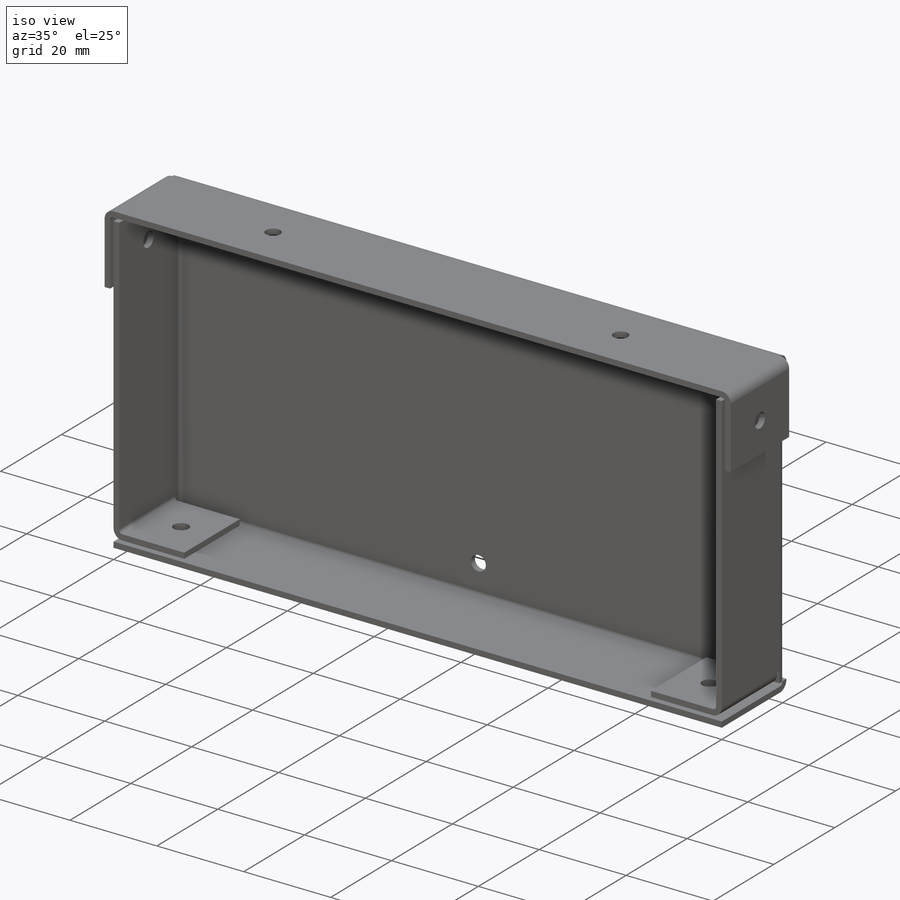
[diagram: iso view]
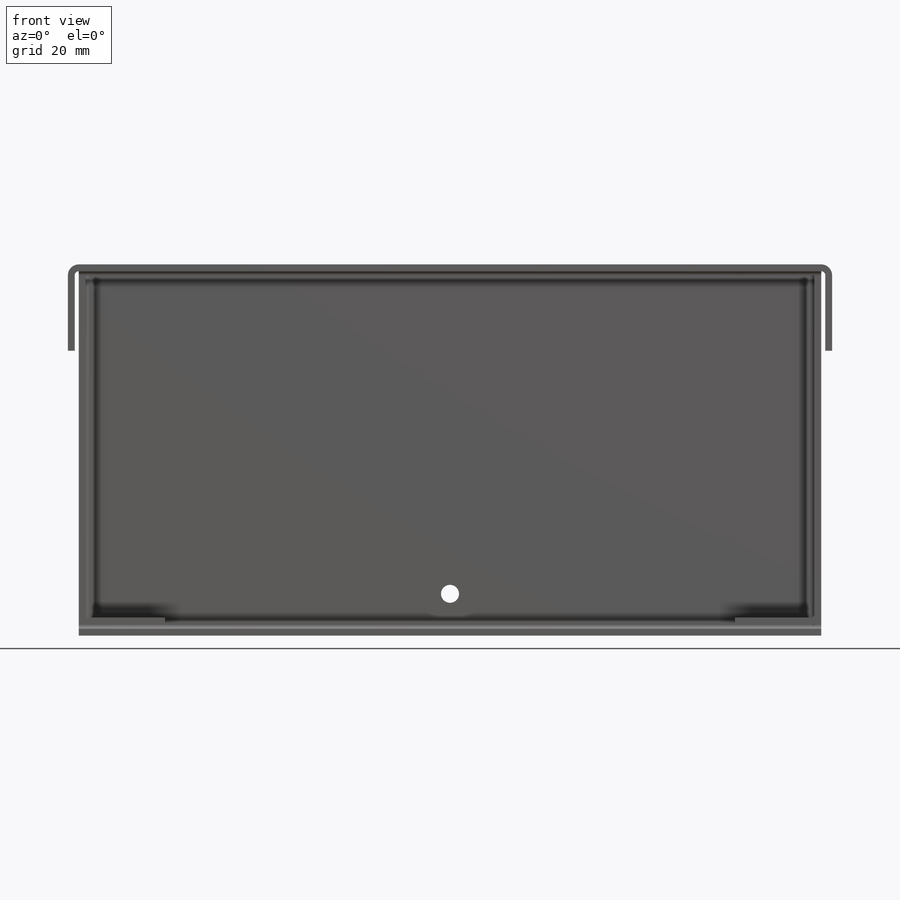
[diagram: front view]
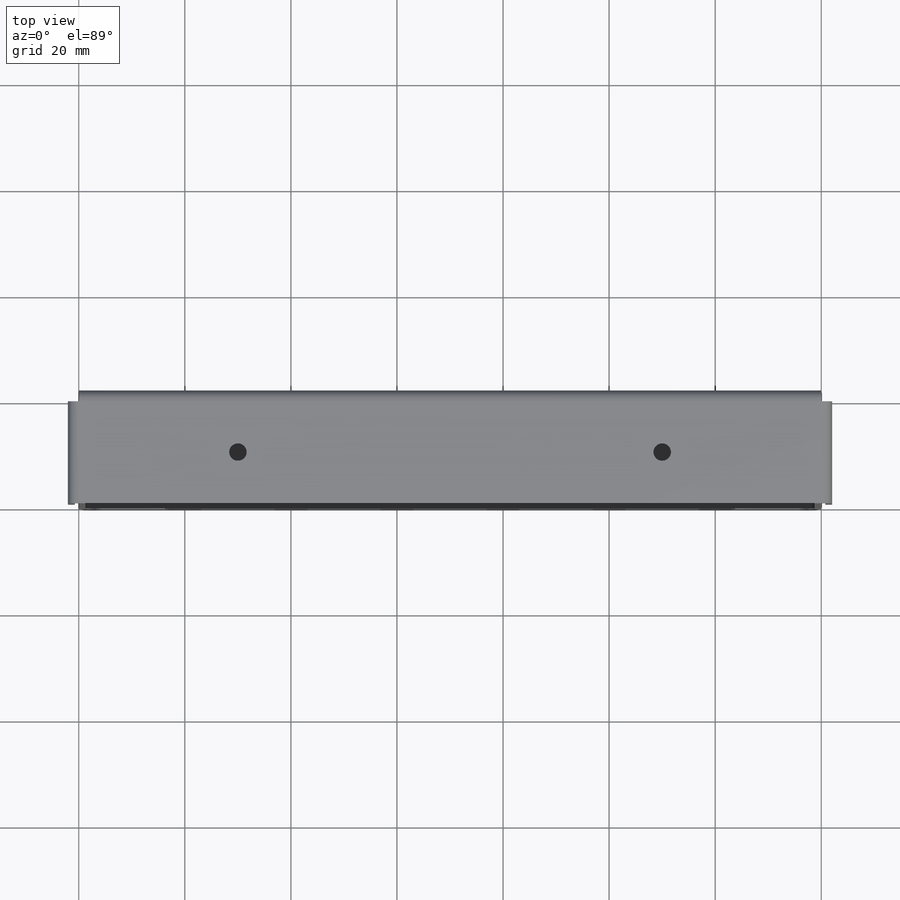
[diagram: top view]
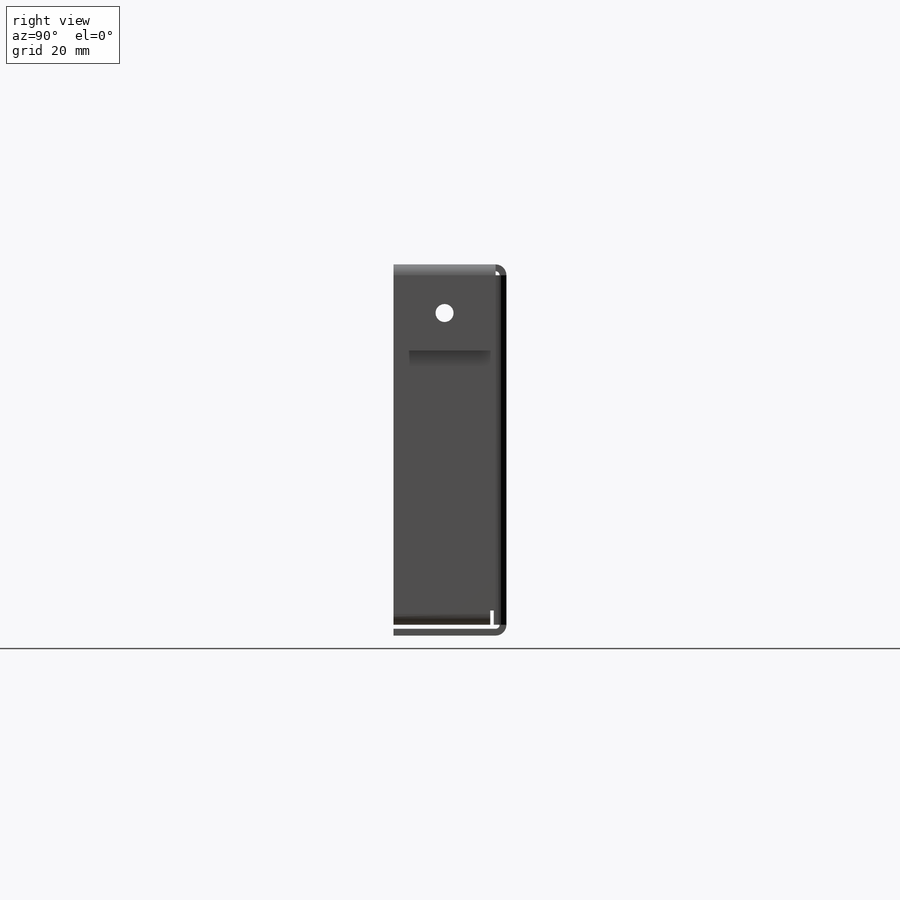
[diagram: right view]
SOLIDWORKS PART (.sldprt)
format: sldprt  version: not decoded by parser v0  size: 840,704 bytes
history: native  units: mm
features: sketch x48, sheet_metal_op x21, hole x4, material x1, plane x1 + 13 further entries (+12 scaffold rows collapsed; 13 parser-record rows omitted)
feature tree (113):
  scaffold x12  (default folders/planes/origin — collapsed)
  material  "Material <not specified>"
  sketch  "Sketch1"  dims[c1.D1=~53.691553mm c1.D2=~100.618816mm c2.D1=140.0mm c2.D2=70.0mm c3.D1=0.762mm c3.D2=0.389 c3.D3=1.1938mm c3.D6=500.0mm]
  sheet_metal_op  "Base-Flange1"
  plane  "Mid Width"
  sketch  "Sketch8"  dims[c1.D1=0.762mm c1.D4=90.0deg c1.D5=1.0 c1.D8=0.645mm c1.D9=0.645mm c2.D1=0.762mm c2.D2=500.0mm c2.D3=0.0mm c2.D6=10.0mm c2.D7=20.0mm c2.Edge-Flange2=0.0]
  sketch  "Sketch11"
  sheet_metal_op  "EdgeBend2"  Edge-Flange3=0
  sketch  "Sketch14"
  sheet_metal_op  "EdgeBend3"  Edge-Flange4=0
  sketch  "Sketch17"
  sheet_metal_op  "EdgeBend4"  Edge-Flange6=0
  sketch  "Sketch23"  dims[D1=15.0mm D2=1.0mm]
  sheet_metal_op  "EdgeBend6"  Edge-Flange8=0
  sketch  "Sketch29"  dims[D1=1.0mm D2=15.0mm]
  sheet_metal_op  "EdgeBend8"
  hole  "M3 Clearance Hole1"  Diameter=3.4mm Depth=21.29mm
  sketch  "Sketch31"
  sketch  "Sketch32"  dims[hole-wizard template sketch: 60 standard entries collapsed; hole parameters kept: c18.Thru Hole Depth=21.29mm c18.Edge-Flange9=0.0]
  sketch  "Sketch37"
  sheet_metal_op  "EdgeBend9"  Edge-Flange10=0
  sketch  "Sketch40"
  sheet_metal_op  "EdgeBend10"
  hole  "Tap Drill for M4x0.7 Tap1"  Diameter=3.3mm Depth=1.289mm
  sketch  "Sketch43"  dims[D1=30.0mm D2=30.0mm]
  sketch  "Sketch42"  dims[hole-wizard template sketch: 47 standard entries collapsed; hole parameters kept: c15.Hole Depth=1.289mm c15.D3=~14.816244mm c15.Drill Angle=118.0deg]
  hole  "M3 Clearance Hole3"  Diameter=3.4mm Depth=3.342mm
  sketch  "Sketch45"  dims[D1=~23.372544mm]
  sketch  "Sketch44"  dims[hole-wizard template sketch: 60 standard entries collapsed; hole parameters kept: c18.Thru Hole Depth=3.342mm]
  hole  "M3 Clearance Hole4"  Diameter=3.4mm Depth=144.104mm
  sketch  "Sketch47"  dims[D1=~75.037246mm]
  sketch  "Sketch46"  dims[hole-wizard template sketch: 60 standard entries collapsed; hole parameters kept: c18.Thru Hole Depth=144.104mm]
  sketch  "Bend-Lines1"
  sketch  "Bounding-Box1"
  sheet_metal_op  "Sheet-Metal(1)"
  "Flat-Pattern(1)"
  sketch  "Bend-Lines2"
  sketch  "Bounding-Box2"
  parser-record x13  (decoder bookkeeping rows leaked as tree rows — omitted from the tree; the rows remain in map.json)
  sheet_metal_op  "Sheet-Metal(2)"
  "Flat-Pattern(1)"
  sketch  "Bend-Lines2"
  sketch  "Bounding-Box2"
  sheet_metal_op  "Sheet-Metal(3)"
  "Flat-Pattern(1)"
  sketch  "Bend-Lines2"
  sketch  "Bounding-Box2"
  sheet_metal_op  "Sheet-Metal(4)"
  "Flat-Pattern(1)"
  sketch  "Bend-Lines2"
  sketch  "Bounding-Box2"
  sheet_metal_op  "Sheet-Metal(5)"
  "Flat-Pattern(1)"
  sketch  "Bend-Lines2"
  sketch  "Bounding-Box2"
  sheet_metal_op  "Sheet-Metal(7)"
  "Flat-Pattern(1)"
  sketch  "Bend-Lines2"
  sketch  "Bounding-Box2"
  sheet_metal_op  "Sheet-Metal(9)"
  "Flat-Pattern(1)"
  sketch  "Bend-Lines2"
  sketch  "Bounding-Box2"
  sheet_metal_op  "Sheet-Metal(12)"
  "Flat-Pattern(1)"
  sketch  "Bend-Lines2"
  sketch  "Bounding-Box2"
  sheet_metal_op  "Sheet-Metal(14)"
  "Flat-Pattern(1)"
  sketch  "Bend-Lines2"
  sketch  "Bounding-Box2"
  sheet_metal_op  "Sheet-Metal(15)"
  "Flat-Pattern(1)"
  sketch  "Bend-Lines2"
  sketch  "Bounding-Box2"
  sketch  "Sketch30-1"  dims[D1=~18.415126mm]
  sheet_metal_op  "Sheet-Metal(16)"
  "Flat-Pattern(1)"
  sketch  "Bend-Lines2"
  sketch  "Bounding-Box2"
  sketch  "Sketch30-1"  dims[D1=~18.415126mm]
  sheet_metal_op  "Sheet-Metal(17)"
  "Flat-Pattern(1)"
  sketch  "Bend-Lines2"
  sketch  "Bounding-Box2"
  sketch  "Sketch30-1"  dims[D1=~18.415126mm]
  sheet_metal_op  "Sheet-Metal(18)"
  "Flat-Pattern(1)"
  sketch  "Bend-Lines2"
  sketch  "Bounding-Box2"
decode coverage: 23 of 73 modeling features carry decoded parameters; 13 rows unclassified (native names shown)
note: ~ marks probable driven/reference dimensions
summary: Diameter pulled from absorbed wizard sketch
note: suppression state not decoded; provenance and decode notes live in map.json
